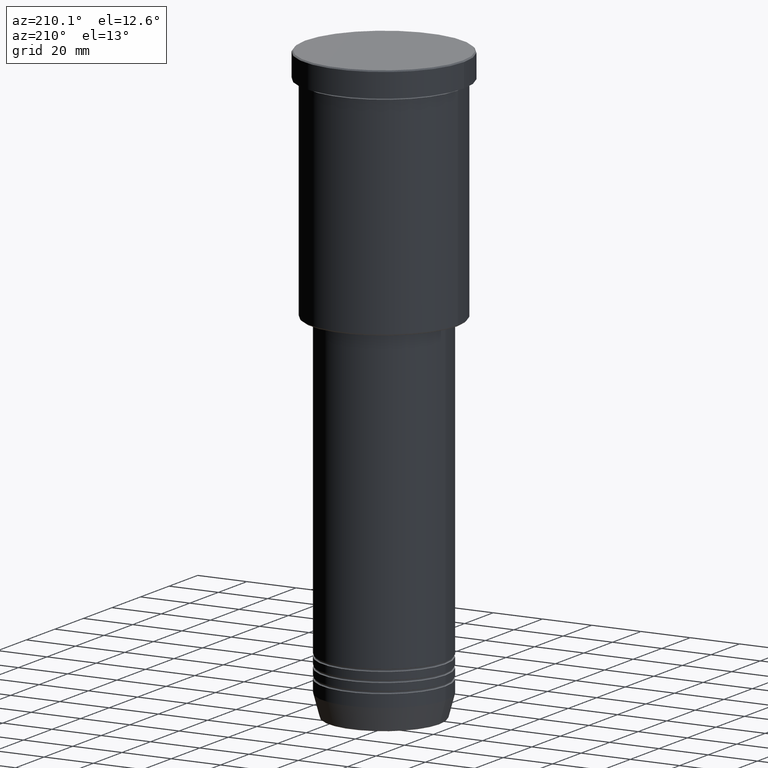
[diagram: clean part render]
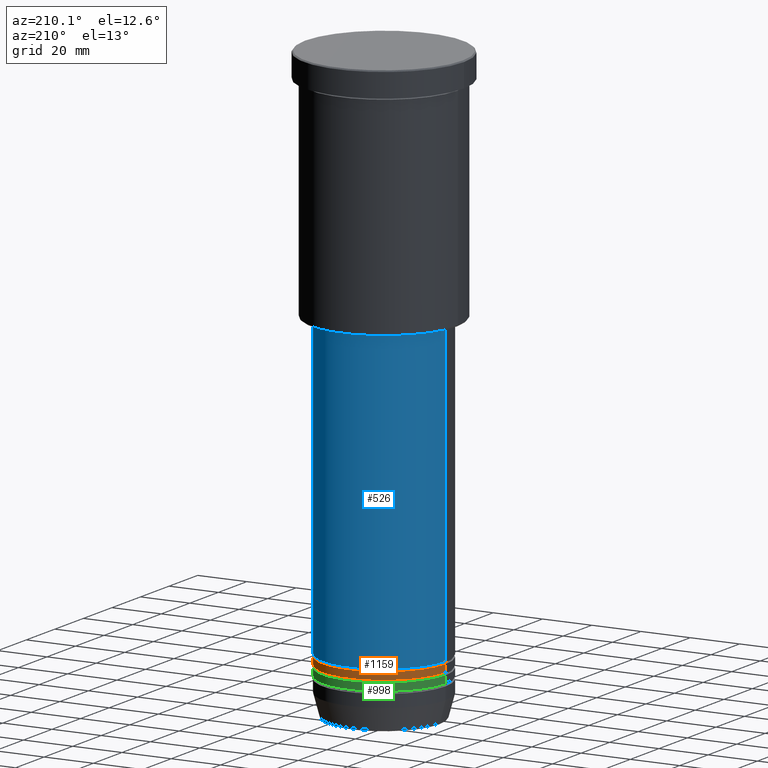
[diagram: same view with three faces highlighted in distinct colors, each labeled with its STEP entity id]
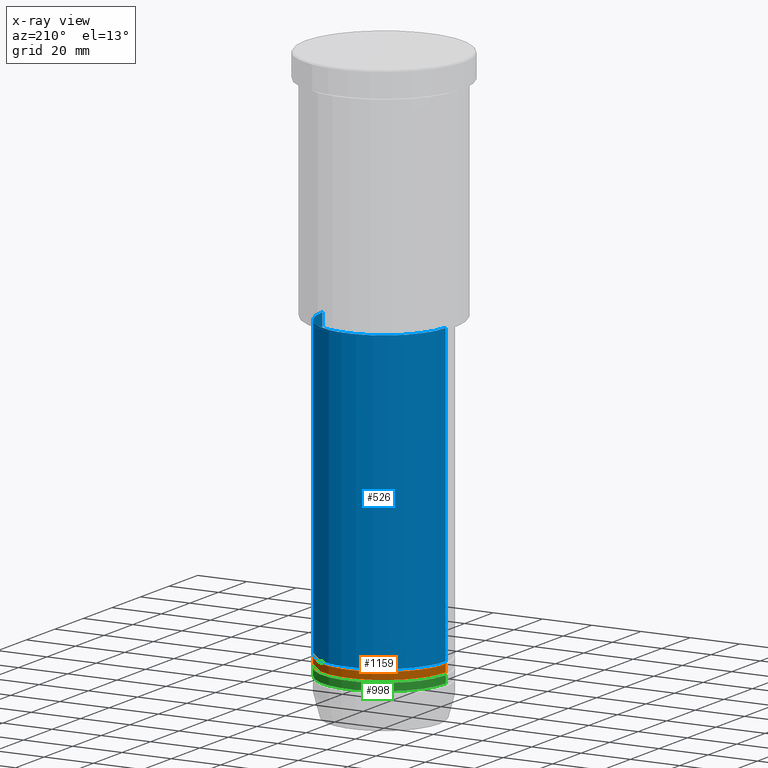
[diagram: x-ray of the same camera — body ghosted, the three highlighted faces saturated]
A machine part, auxiliary view with three faces highlighted in distinct colors.
The next image is the same camera in x-ray (body ghosted, the three faces saturated) — at least one of them is partly hidden behind the body in this view.
Their STEP definitions:

[orange] entity #1159 — the highlighted cylindrical surface (partial cylindrical patch) has radius 25 mm, axis along (-0, -0, 1).
#127 = AXIS2_PLACEMENT_3D ( 'NONE', #857, #401, #766 ) ;
#183 = DIRECTION ( 'NONE',  ( -0.000000000000000000, -0.000000000000000000, 1.000000000000000000 ) ) ;
#200 = DIRECTION ( 'NONE',  ( 1.000000000000000000, 0.000000000000000000, 0.000000000000000000 ) ) ;
#208 = DIRECTION ( 'NONE',  ( -0.000000000000000000, -0.000000000000000000, 1.000000000000000000 ) ) ;
#230 = VERTEX_POINT ( 'NONE', #742 ) ;
#251 = CIRCLE ( 'NONE', #785, 25.00000000000000000 ) ;
#256 = DIRECTION ( 'NONE',  ( -0.000000000000000000, -0.000000000000000000, 1.000000000000000000 ) ) ;
#263 = ORIENTED_EDGE ( 'NONE', *, *, #1005, .F. ) ;
#275 = CARTESIAN_POINT ( 'NONE',  ( 25.00000000000000000, 0.000000000000000000, 0.000000000000000000 ) ) ;
#280 = VERTEX_POINT ( 'NONE', #1128 ) ;
#291 = EDGE_CURVE ( 'NONE', #280, #230, #628, .T. ) ;
#370 = CYLINDRICAL_SURFACE ( 'NONE', #747, 25.00000000000000000 ) ;
#401 = DIRECTION ( 'NONE',  ( -0.000000000000000000, -0.000000000000000000, 1.000000000000000000 ) ) ;
#420 = ORIENTED_EDGE ( 'NONE', *, *, #649, .F. ) ;
#446 = LINE ( 'NONE', #275, #1104 ) ;
#611 = CARTESIAN_POINT ( 'NONE',  ( -25.00000000000000000, 3.061616997868383043E-15, -218.0000000000000000 ) ) ;
#628 = CIRCLE ( 'NONE', #127, 25.00000000000000355 ) ;
#644 = CARTESIAN_POINT ( 'NONE',  ( -25.00000000000000000, 3.061616997868383043E-15, 0.000000000000000000 ) ) ;
#649 = EDGE_CURVE ( 'NONE', #832, #1015, #251, .T. ) ;
#661 = DIRECTION ( 'NONE',  ( 1.000000000000000000, 0.000000000000000000, 0.000000000000000000 ) ) ;
#742 = CARTESIAN_POINT ( 'NONE',  ( -25.00000000000000711, 3.061616997868383831E-15, -221.0000000000000000 ) ) ;
#746 = FACE_OUTER_BOUND ( 'NONE', #920, .T. ) ;
#747 = AXIS2_PLACEMENT_3D ( 'NONE', #935, #208, #661 ) ;
#766 = DIRECTION ( 'NONE',  ( 1.000000000000000000, 0.000000000000000000, 0.000000000000000000 ) ) ;
#785 = AXIS2_PLACEMENT_3D ( 'NONE', #1099, #1118, #200 ) ;
#832 = VERTEX_POINT ( 'NONE', #1063 ) ;
#857 = CARTESIAN_POINT ( 'NONE',  ( 0.000000000000000000, 0.000000000000000000, -221.0000000000000000 ) ) ;
#868 = ORIENTED_EDGE ( 'NONE', *, *, #291, .T. ) ;
#918 = VECTOR ( 'NONE', #183, 1000.000000000000000 ) ;
#920 = EDGE_LOOP ( 'NONE', ( #868, #986, #420, #263 ) ) ;
#935 = CARTESIAN_POINT ( 'NONE',  ( 0.000000000000000000, 0.000000000000000000, 0.000000000000000000 ) ) ;
#986 = ORIENTED_EDGE ( 'NONE', *, *, #1171, .T. ) ;
#1005 = EDGE_CURVE ( 'NONE', #280, #832, #446, .T. ) ;
#1015 = VERTEX_POINT ( 'NONE', #611 ) ;
#1017 = LINE ( 'NONE', #644, #918 ) ;
#1063 = CARTESIAN_POINT ( 'NONE',  ( 25.00000000000000000, 0.000000000000000000, -218.0000000000000000 ) ) ;
#1099 = CARTESIAN_POINT ( 'NONE',  ( 0.000000000000000000, 0.000000000000000000, -218.0000000000000000 ) ) ;
#1104 = VECTOR ( 'NONE', #256, 1000.000000000000000 ) ;
#1118 = DIRECTION ( 'NONE',  ( -0.000000000000000000, -0.000000000000000000, 1.000000000000000000 ) ) ;
#1128 = CARTESIAN_POINT ( 'NONE',  ( 25.00000000000000355, 0.000000000000000000, -221.0000000000000000 ) ) ;
#1159 = ADVANCED_FACE ( 'NONE', ( #746 ), #370, .T. ) ;
#1171 = EDGE_CURVE ( 'NONE', #230, #1015, #1017, .T. ) ;

[blue] entity #526 — the highlighted cylindrical surface (partial cylindrical patch) has radius 25 mm, axis along (-0, -0, 1).
#14 = DIRECTION ( 'NONE',  ( -0.000000000000000000, -0.000000000000000000, 1.000000000000000000 ) ) ;
#64 = ORIENTED_EDGE ( 'NONE', *, *, #168, .F. ) ;
#79 = CARTESIAN_POINT ( 'NONE',  ( 25.00000000000000355, 0.000000000000000000, 0.000000000000000000 ) ) ;
#92 = VECTOR ( 'NONE', #521, 1000.000000000000000 ) ;
#122 = CARTESIAN_POINT ( 'NONE',  ( 25.00000000000000711, 0.000000000000000000, -97.00000000000002842 ) ) ;
#123 = CIRCLE ( 'NONE', #805, 25.00000000000000000 ) ;
#131 = CARTESIAN_POINT ( 'NONE',  ( 25.00000000000000000, 0.000000000000000000, -217.0000000000000000 ) ) ;
#161 = LINE ( 'NONE', #79, #846 ) ;
#168 = EDGE_CURVE ( 'NONE', #414, #329, #161, .T. ) ;
#207 = VERTEX_POINT ( 'NONE', #534 ) ;
#242 = AXIS2_PLACEMENT_3D ( 'NONE', #915, #447, #441 ) ;
#270 = CARTESIAN_POINT ( 'NONE',  ( -25.00000000000000355, 3.061616997868383437E-15, 0.000000000000000000 ) ) ;
#299 = CARTESIAN_POINT ( 'NONE',  ( 0.000000000000000000, 0.000000000000000000, -217.0000000000000000 ) ) ;
#329 = VERTEX_POINT ( 'NONE', #122 ) ;
#337 = ORIENTED_EDGE ( 'NONE', *, *, #701, .T. ) ;
#380 = DIRECTION ( 'NONE',  ( 1.000000000000000000, 0.000000000000000000, 0.000000000000000000 ) ) ;
#394 = DIRECTION ( 'NONE',  ( -0.000000000000000000, -0.000000000000000000, 1.000000000000000000 ) ) ;
#414 = VERTEX_POINT ( 'NONE', #131 ) ;
#441 = DIRECTION ( 'NONE',  ( 1.000000000000000000, 0.000000000000000000, 0.000000000000000000 ) ) ;
#447 = DIRECTION ( 'NONE',  ( -0.000000000000000000, -0.000000000000000000, 1.000000000000000000 ) ) ;
#496 = VERTEX_POINT ( 'NONE', #1064 ) ;
#521 = DIRECTION ( 'NONE',  ( -0.000000000000000000, -0.000000000000000000, 1.000000000000000000 ) ) ;
#526 = ADVANCED_FACE ( 'NONE', ( #997 ), #527, .T. ) ;
#527 = CYLINDRICAL_SURFACE ( 'NONE', #242, 25.00000000000000355 ) ;
#534 = CARTESIAN_POINT ( 'NONE',  ( -25.00000000000000000, 3.061616997868383437E-15, -217.0000000000000000 ) ) ;
#556 = DIRECTION ( 'NONE',  ( 1.000000000000000000, 0.000000000000000000, 0.000000000000000000 ) ) ;
#559 = EDGE_LOOP ( 'NONE', ( #337, #1160, #637, #64 ) ) ;
#594 = EDGE_CURVE ( 'NONE', #207, #496, #620, .T. ) ;
#620 = LINE ( 'NONE', #270, #92 ) ;
#637 = ORIENTED_EDGE ( 'NONE', *, *, #652, .F. ) ;
#647 = CARTESIAN_POINT ( 'NONE',  ( 0.000000000000000000, 0.000000000000000000, -97.00000000000002842 ) ) ;
#652 = EDGE_CURVE ( 'NONE', #329, #496, #1008, .T. ) ;
#701 = EDGE_CURVE ( 'NONE', #414, #207, #123, .T. ) ;
#724 = AXIS2_PLACEMENT_3D ( 'NONE', #647, #14, #380 ) ;
#805 = AXIS2_PLACEMENT_3D ( 'NONE', #299, #394, #556 ) ;
#846 = VECTOR ( 'NONE', #1003, 1000.000000000000000 ) ;
#915 = CARTESIAN_POINT ( 'NONE',  ( 0.000000000000000000, 0.000000000000000000, 0.000000000000000000 ) ) ;
#997 = FACE_OUTER_BOUND ( 'NONE', #559, .T. ) ;
#1003 = DIRECTION ( 'NONE',  ( -0.000000000000000000, -0.000000000000000000, 1.000000000000000000 ) ) ;
#1008 = CIRCLE ( 'NONE', #724, 25.00000000000000711 ) ;
#1064 = CARTESIAN_POINT ( 'NONE',  ( -25.00000000000001066, 3.061616997868384226E-15, -97.00000000000002842 ) ) ;
#1160 = ORIENTED_EDGE ( 'NONE', *, *, #594, .T. ) ;

[green] entity #998 — the highlighted cylindrical surface (partial cylindrical patch) has radius 25 mm, axis along (-0, -0, 1).
#9 = LINE ( 'NONE', #197, #41 ) ;
#41 = VECTOR ( 'NONE', #1014, 1000.000000000000000 ) ;
#90 = DIRECTION ( 'NONE',  ( 1.000000000000000000, 0.000000000000000000, 0.000000000000000000 ) ) ;
#93 = CIRCLE ( 'NONE', #845, 25.00000000000000000 ) ;
#146 = ORIENTED_EDGE ( 'NONE', *, *, #804, .T. ) ;
#197 = CARTESIAN_POINT ( 'NONE',  ( 25.00000000000000000, 0.000000000000000000, 0.000000000000000000 ) ) ;
#204 = CIRCLE ( 'NONE', #1105, 25.00000000000000000 ) ;
#232 = EDGE_CURVE ( 'NONE', #296, #738, #204, .T. ) ;
#264 = CARTESIAN_POINT ( 'NONE',  ( 0.000000000000000000, 0.000000000000000000, -224.9999999999999716 ) ) ;
#296 = VERTEX_POINT ( 'NONE', #750 ) ;
#300 = DIRECTION ( 'NONE',  ( 1.000000000000000000, 0.000000000000000000, 0.000000000000000000 ) ) ;
#332 = EDGE_CURVE ( 'NONE', #1066, #296, #9, .T. ) ;
#350 = DIRECTION ( 'NONE',  ( -0.000000000000000000, -0.000000000000000000, 1.000000000000000000 ) ) ;
#376 = DIRECTION ( 'NONE',  ( -0.000000000000000000, -0.000000000000000000, 1.000000000000000000 ) ) ;
#382 = AXIS2_PLACEMENT_3D ( 'NONE', #728, #350, #452 ) ;
#392 = EDGE_LOOP ( 'NONE', ( #535, #146, #1057, #536 ) ) ;
#395 = CARTESIAN_POINT ( 'NONE',  ( 0.000000000000000000, 0.000000000000000000, -222.0000000000000000 ) ) ;
#399 = LINE ( 'NONE', #880, #934 ) ;
#439 = FACE_OUTER_BOUND ( 'NONE', #392, .T. ) ;
#452 = DIRECTION ( 'NONE',  ( 1.000000000000000000, 0.000000000000000000, 0.000000000000000000 ) ) ;
#457 = CYLINDRICAL_SURFACE ( 'NONE', #382, 25.00000000000000000 ) ;
#520 = DIRECTION ( 'NONE',  ( -0.000000000000000000, -0.000000000000000000, 1.000000000000000000 ) ) ;
#535 = ORIENTED_EDGE ( 'NONE', *, *, #1018, .T. ) ;
#536 = ORIENTED_EDGE ( 'NONE', *, *, #332, .F. ) ;
#618 = CARTESIAN_POINT ( 'NONE',  ( 25.00000000000000000, 0.000000000000000000, -224.9999999999999716 ) ) ;
#720 = CARTESIAN_POINT ( 'NONE',  ( -25.00000000000000000, 3.061616997868383043E-15, -224.9999999999999716 ) ) ;
#728 = CARTESIAN_POINT ( 'NONE',  ( 0.000000000000000000, 0.000000000000000000, 0.000000000000000000 ) ) ;
#738 = VERTEX_POINT ( 'NONE', #838 ) ;
#750 = CARTESIAN_POINT ( 'NONE',  ( 25.00000000000000000, 0.000000000000000000, -222.0000000000000000 ) ) ;
#804 = EDGE_CURVE ( 'NONE', #1093, #738, #399, .T. ) ;
#838 = CARTESIAN_POINT ( 'NONE',  ( -25.00000000000000000, 3.061616997868383043E-15, -222.0000000000000000 ) ) ;
#845 = AXIS2_PLACEMENT_3D ( 'NONE', #264, #520, #90 ) ;
#880 = CARTESIAN_POINT ( 'NONE',  ( -25.00000000000000000, 3.061616997868383043E-15, 0.000000000000000000 ) ) ;
#934 = VECTOR ( 'NONE', #967, 1000.000000000000000 ) ;
#967 = DIRECTION ( 'NONE',  ( -0.000000000000000000, -0.000000000000000000, 1.000000000000000000 ) ) ;
#998 = ADVANCED_FACE ( 'NONE', ( #439 ), #457, .T. ) ;
#1014 = DIRECTION ( 'NONE',  ( -0.000000000000000000, -0.000000000000000000, 1.000000000000000000 ) ) ;
#1018 = EDGE_CURVE ( 'NONE', #1066, #1093, #93, .T. ) ;
#1057 = ORIENTED_EDGE ( 'NONE', *, *, #232, .F. ) ;
#1066 = VERTEX_POINT ( 'NONE', #618 ) ;
#1093 = VERTEX_POINT ( 'NONE', #720 ) ;
#1105 = AXIS2_PLACEMENT_3D ( 'NONE', #395, #376, #300 ) ;